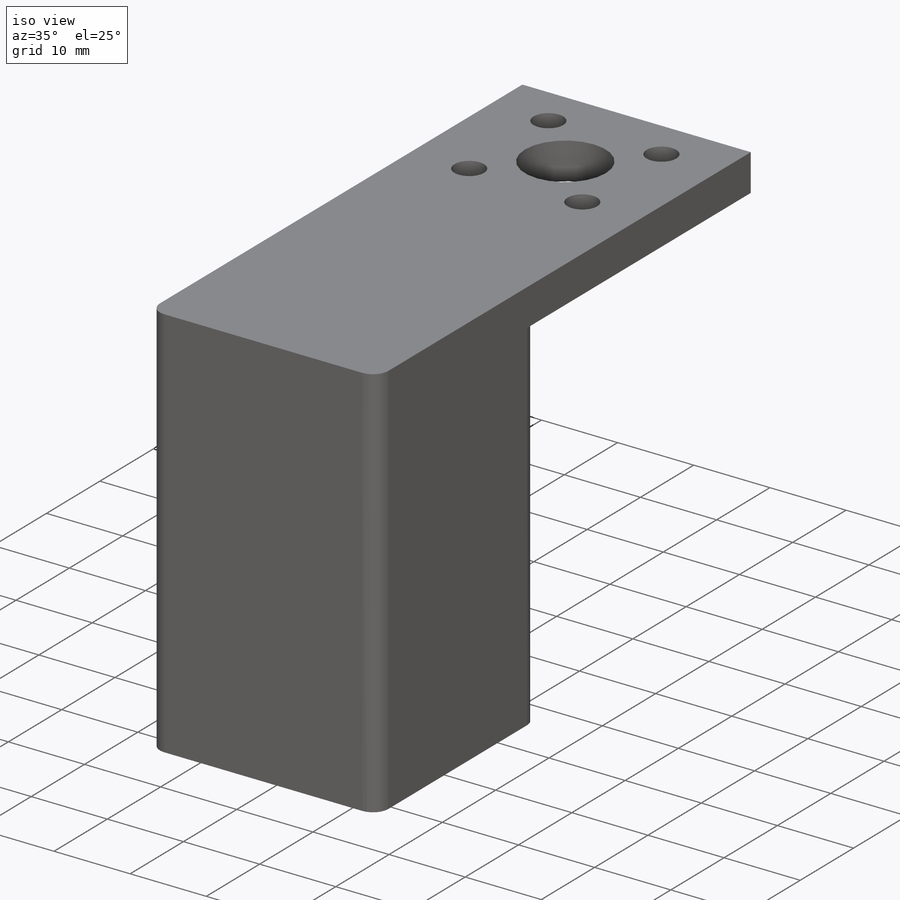
[diagram: iso view]
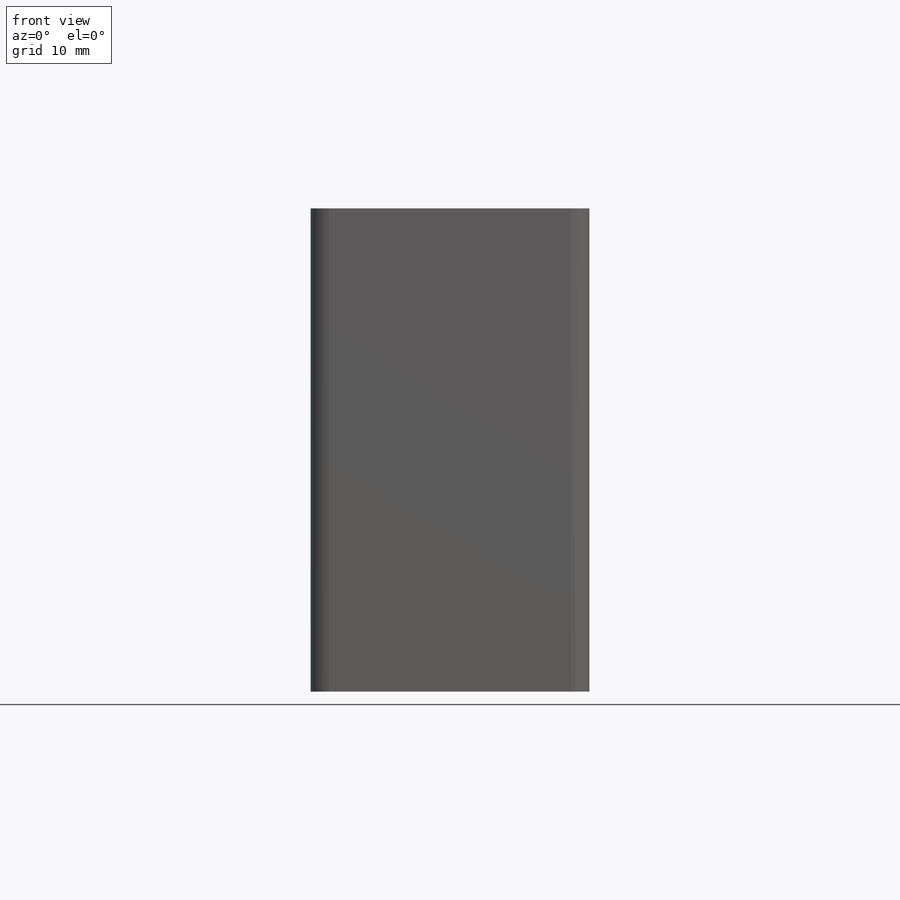
[diagram: front view]
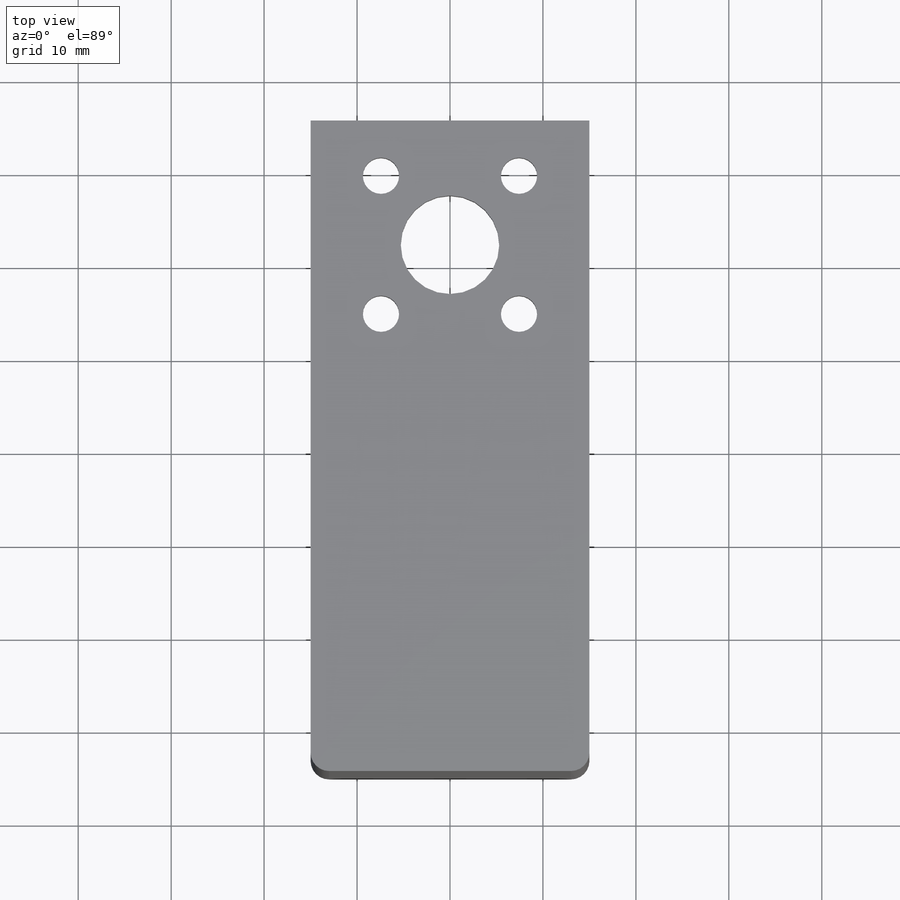
[diagram: top view]
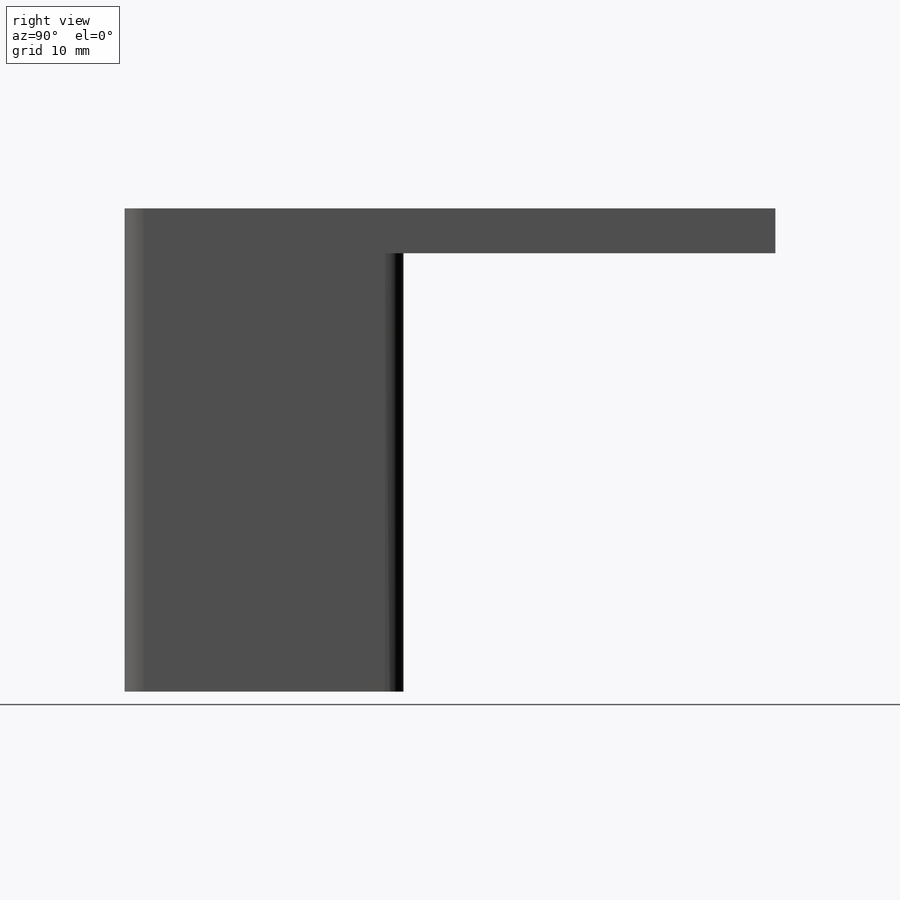
[diagram: right view]
SOLIDWORKS PART (.sldprt)
format: sldprt  version: not decoded by parser v0  size: 200,192 bytes
history: native  units: mm
features: sketch x4, plane x3, extrude x3, material x1, cut_extrude x1, fillet x1 (+8 scaffold rows collapsed)
feature tree (21):
  scaffold x8  (default folders/planes/origin — collapsed)
  material  "Material <sin especificar>"
  plane  "Alzado"
  plane  "Planta"
  plane  "Vista lateral"
  sketch  "Croquis1"  dims[D1=30.0mm D2=3.0mm D3=~26.55726mm]
  extrude  "Saliente-Extruir1"  Depth=50mm
  sketch  "Croquis2"
  extrude  "Saliente-Extruir2"  Depth=2mm
  sketch  "Croquis6"
  extrude  "Saliente-Extruir4"  Depth=40mm
  sketch  "Croquis7"  dims[c1.D1=10.6mm c1.D2=21.0mm c1.D3=3.9mm c1.D4=~8.468869mm c2.D4=45.0deg c2.D5=4.0]
  cut_extrude  "Cortar-Extruir2"  Depth=40mm
  fillet  "Redondeo1"  Radius=2mm
decode coverage: 7 of 9 modeling features carry decoded parameters
note: ~ marks probable driven/reference dimensions
note: suppression state not decoded; provenance and decode notes live in map.json
